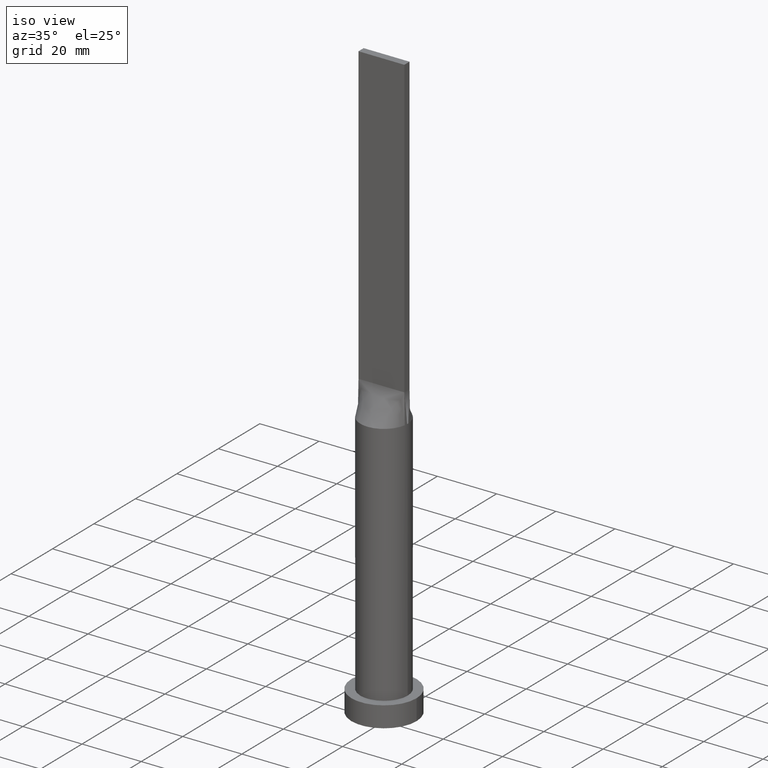
[diagram: clean part render]
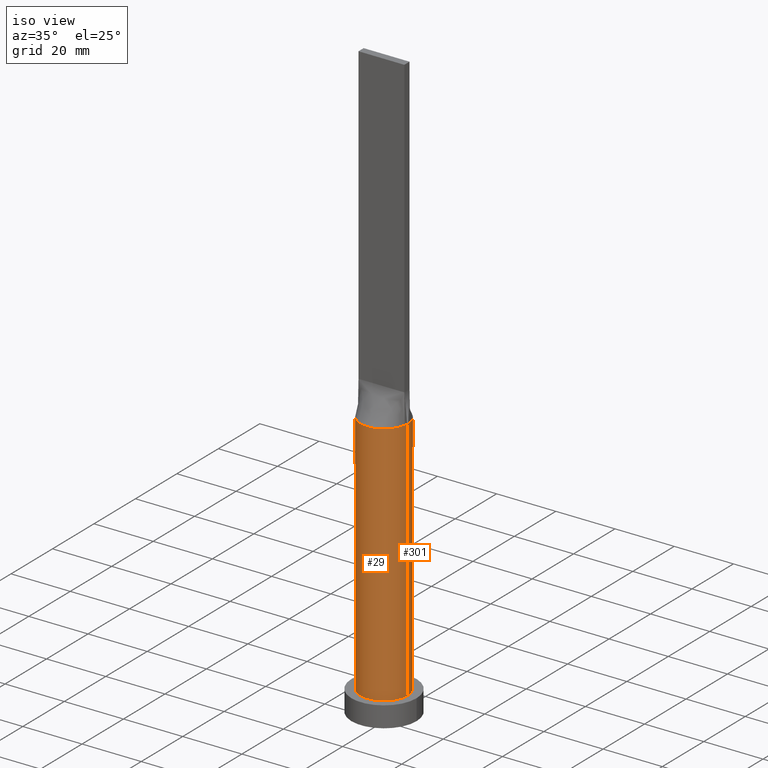
[diagram: same view with one multi-face feature highlighted, each face labeled with its STEP entity id]
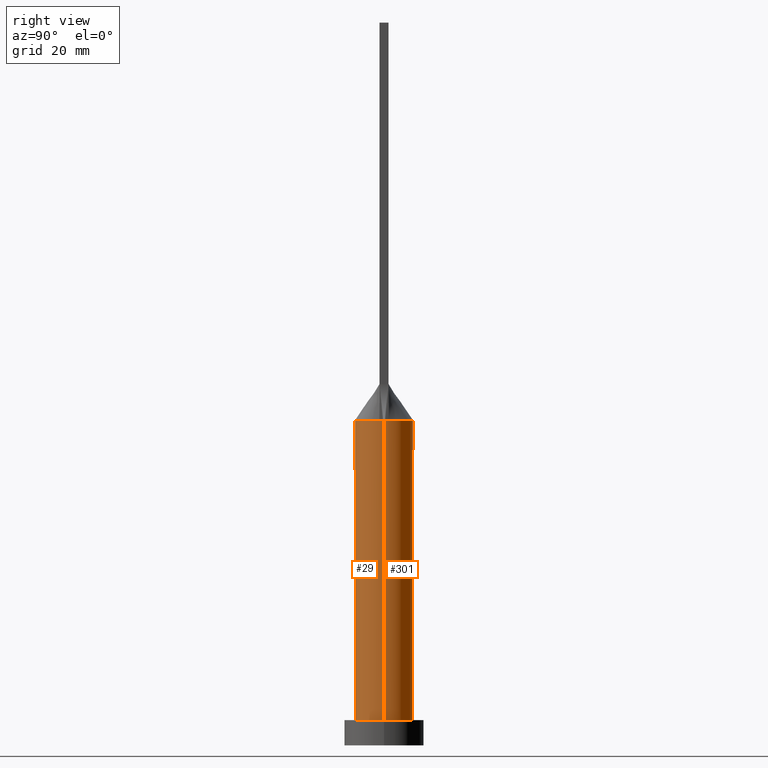
[diagram: same view with one multi-face feature highlighted, each face labeled with its STEP entity id]
A machine part, iso view. The highlighted faces form ONE feature: a constant-radius fillet chain: 2 tangent blend faces with common blend radius 8 mm. The faces share edges in the B-rep.
A second angle (right view) of the same feature is appended — it is thin or edge-on in the first view.
Their STEP definitions:
[1] entity #29 (Cylinder):
#13 = VERTEX_POINT ( 'NONE', #71 ) ;
#19 = EDGE_LOOP ( 'NONE', ( #499, #325, #556, #604, #462, #554 ) ) ;
#29 = ADVANCED_FACE ( 'NONE', ( #595 ), #283, .T. ) ;
#48 = DIRECTION ( 'NONE',  ( 1.000000000000000000, 1.776356839400250465E-15, 0.000000000000000000 ) ) ;
#50 = CARTESIAN_POINT ( 'NONE',  ( -8.000000000000000000, 0.000000000000000000, 7.000000000000000000 ) ) ;
#71 = CARTESIAN_POINT ( 'NONE',  ( -7.999674421998661522, -1.996358676257538358E-15, 90.00000000000001421 ) ) ;
#83 = AXIS2_PLACEMENT_3D ( 'NONE', #503, #102, #48 ) ;
#99 = CIRCLE ( 'NONE', #469, 8.000000000000000000 ) ;
#102 = DIRECTION ( 'NONE',  ( 0.000000000000000000, 0.000000000000000000, 1.000000000000000000 ) ) ;
#109 = CARTESIAN_POINT ( 'NONE',  ( 0.000000000000000000, 0.000000000000000000, 90.00000000000001421 ) ) ;
#121 = DIRECTION ( 'NONE',  ( -0.000000000000000000, -0.000000000000000000, -1.000000000000000000 ) ) ;
#126 = EDGE_CURVE ( 'NONE', #239, #549, #494, .T. ) ;
#135 = DIRECTION ( 'NONE',  ( -0.000000000000000000, -0.000000000000000000, -1.000000000000000000 ) ) ;
#192 = AXIS2_PLACEMENT_3D ( 'NONE', #570, #484, #619 ) ;
#195 = DIRECTION ( 'NONE',  ( 1.000000000000000000, 0.000000000000000000, 0.000000000000000000 ) ) ;
#199 = DIRECTION ( 'NONE',  ( 0.000000000000000000, 0.000000000000000000, 1.000000000000000000 ) ) ;
#210 = CARTESIAN_POINT ( 'NONE',  ( -7.897940634034629426, -1.273861398824698732, 90.00000000000001421 ) ) ;
#239 = VERTEX_POINT ( 'NONE', #50 ) ;
#283 = CYLINDRICAL_SURFACE ( 'NONE', #350, 8.000000000000000000 ) ;
#285 = LINE ( 'NONE', #527, #456 ) ;
#308 = CIRCLE ( 'NONE', #404, 8.000000000000000000 ) ;
#316 = DIRECTION ( 'NONE',  ( -0.000000000000000000, -0.000000000000000000, -1.000000000000000000 ) ) ;
#317 = EDGE_CURVE ( 'NONE', #567, #549, #285, .T. ) ;
#325 = ORIENTED_EDGE ( 'NONE', *, *, #571, .F. ) ;
#339 = EDGE_CURVE ( 'NONE', #13, #239, #475, .T. ) ;
#350 = AXIS2_PLACEMENT_3D ( 'NONE', #109, #316, #472 ) ;
#364 = VERTEX_POINT ( 'NONE', #393 ) ;
#365 = VECTOR ( 'NONE', #121, 1000.000000000000000 ) ;
#388 = CIRCLE ( 'NONE', #83, 8.000000000000000000 ) ;
#391 = EDGE_CURVE ( 'NONE', #458, #364, #308, .T. ) ;
#393 = CARTESIAN_POINT ( 'NONE',  ( 7.897952327758385849, -1.273863293446191536, 90.00000000000001421 ) ) ;
#404 = AXIS2_PLACEMENT_3D ( 'NONE', #483, #199, #536 ) ;
#408 = EDGE_CURVE ( 'NONE', #13, #458, #99, .T. ) ;
#416 = CARTESIAN_POINT ( 'NONE',  ( -8.000000000000000000, 0.000000000000000000, 90.00000000000001421 ) ) ;
#435 = CARTESIAN_POINT ( 'NONE',  ( 0.000000000000000000, 0.000000000000000000, 90.00000000000001421 ) ) ;
#456 = VECTOR ( 'NONE', #135, 1000.000000000000000 ) ;
#458 = VERTEX_POINT ( 'NONE', #210 ) ;
#461 = CARTESIAN_POINT ( 'NONE',  ( 8.000000000000000000, 9.797174393178825657E-16, 7.000000000000000000 ) ) ;
#462 = ORIENTED_EDGE ( 'NONE', *, *, #339, .T. ) ;
#469 = AXIS2_PLACEMENT_3D ( 'NONE', #435, #572, #195 ) ;
#472 = DIRECTION ( 'NONE',  ( -1.000000000000000000, 0.000000000000000000, 0.000000000000000000 ) ) ;
#475 = LINE ( 'NONE', #416, #365 ) ;
#483 = CARTESIAN_POINT ( 'NONE',  ( 0.000000000000000000, 0.000000000000000000, 90.00000000000001421 ) ) ;
#484 = DIRECTION ( 'NONE',  ( 0.000000000000000000, 0.000000000000000000, 1.000000000000000000 ) ) ;
#494 = CIRCLE ( 'NONE', #192, 8.000000000000000000 ) ;
#499 = ORIENTED_EDGE ( 'NONE', *, *, #317, .F. ) ;
#502 = CARTESIAN_POINT ( 'NONE',  ( 7.999674421998661522, 1.953788361903730848E-15, 90.00000000000001421 ) ) ;
#503 = CARTESIAN_POINT ( 'NONE',  ( 0.000000000000000000, 0.000000000000000000, 90.00000000000001421 ) ) ;
#527 = CARTESIAN_POINT ( 'NONE',  ( 8.000000000000000000, 9.797174393178825657E-16, 90.00000000000001421 ) ) ;
#536 = DIRECTION ( 'NONE',  ( 1.000000000000000000, 0.000000000000000000, 0.000000000000000000 ) ) ;
#549 = VERTEX_POINT ( 'NONE', #461 ) ;
#554 = ORIENTED_EDGE ( 'NONE', *, *, #126, .T. ) ;
#556 = ORIENTED_EDGE ( 'NONE', *, *, #391, .F. ) ;
#567 = VERTEX_POINT ( 'NONE', #502 ) ;
#570 = CARTESIAN_POINT ( 'NONE',  ( 0.000000000000000000, 0.000000000000000000, 7.000000000000000000 ) ) ;
#571 = EDGE_CURVE ( 'NONE', #364, #567, #388, .T. ) ;
#572 = DIRECTION ( 'NONE',  ( 0.000000000000000000, 0.000000000000000000, 1.000000000000000000 ) ) ;
#595 = FACE_OUTER_BOUND ( 'NONE', #19, .T. ) ;
#604 = ORIENTED_EDGE ( 'NONE', *, *, #408, .F. ) ;
#619 = DIRECTION ( 'NONE',  ( 1.000000000000000000, 0.000000000000000000, 0.000000000000000000 ) ) ;
[2] entity #301 (Cylinder):
#9 = ORIENTED_EDGE ( 'NONE', *, *, #339, .F. ) ;
#13 = VERTEX_POINT ( 'NONE', #71 ) ;
#15 = DIRECTION ( 'NONE',  ( -0.000000000000000000, -0.000000000000000000, -1.000000000000000000 ) ) ;
#40 = CARTESIAN_POINT ( 'NONE',  ( -2.762781956618985291, 7.527418670504290255, 90.00000000000002842 ) ) ;
#50 = CARTESIAN_POINT ( 'NONE',  ( -8.000000000000000000, 0.000000000000000000, 7.000000000000000000 ) ) ;
#54 = DIRECTION ( 'NONE',  ( 0.000000000000000000, 0.000000000000000000, 1.000000000000000000 ) ) ;
#55 = DIRECTION ( 'NONE',  ( 0.000000000000000000, 0.000000000000000000, 1.000000000000000000 ) ) ;
#59 = CARTESIAN_POINT ( 'NONE',  ( 0.000000000000000000, 0.000000000000000000, 90.00000000000001421 ) ) ;
#65 = AXIS2_PLACEMENT_3D ( 'NONE', #104, #54, #588 ) ;
#71 = CARTESIAN_POINT ( 'NONE',  ( -7.999674421998661522, -1.996358676257538358E-15, 90.00000000000001421 ) ) ;
#75 = CARTESIAN_POINT ( 'NONE',  ( 7.897939137640443974, 1.273861156091724789, 90.00000000000001421 ) ) ;
#80 = FACE_OUTER_BOUND ( 'NONE', #453, .T. ) ;
#81 = CARTESIAN_POINT ( 'NONE',  ( 7.793128424795161990, 1.923622864214272088, 89.99999999999998579 ) ) ;
#87 = B_SPLINE_CURVE_WITH_KNOTS ( 'NONE', 3,
 ( #382, #81, #320, #517, #278, #225, #541, #392, #141, #253, #538, #487, #623, #573, #143, #93, #147, #344, #40, #96, #249, #443, #387, #447, #631, #495, #535, #340, #196, #395 ),
 .UNSPECIFIED., .F., .F.,
 ( 4, 2, 2, 2, 2, 2, 2, 2, 2, 2, 2, 2, 2, 2, 4 ),
 ( 0.000000000000000000, 0.1250000000000000000, 0.1875000000000000000, 0.2500000000000000000, 0.3125000000000000000, 0.3750000000000000000, 0.4375000000000000000, 0.5000000000000000000, 0.5625000000000000000, 0.6250000000000000000, 0.6875000000000000000, 0.7500000000000000000, 0.8125000000000000000, 0.8750000000000000000, 1.000000000000000000 ),
 .UNSPECIFIED. ) ;
#90 = DIRECTION ( 'NONE',  ( 1.000000000000000000, 0.000000000000000000, 0.000000000000000000 ) ) ;
#93 = CARTESIAN_POINT ( 'NONE',  ( -0.5677556330368852544, 7.999999999999998224, 90.00000000000002842 ) ) ;
#96 = CARTESIAN_POINT ( 'NONE',  ( -3.754841939107308235, 7.084924699190308317, 90.00000000000004263 ) ) ;
#97 = CARTESIAN_POINT ( 'NONE',  ( -7.897950825069725234, 1.273863048877633020, 90.00000000000001421 ) ) ;
#98 = EDGE_CURVE ( 'NONE', #315, #227, #87, .T. ) ;
#104 = CARTESIAN_POINT ( 'NONE',  ( 0.000000000000000000, 0.000000000000000000, 7.000000000000000000 ) ) ;
#108 = EDGE_CURVE ( 'NONE', #567, #315, #593, .T. ) ;
#121 = DIRECTION ( 'NONE',  ( -0.000000000000000000, -0.000000000000000000, -1.000000000000000000 ) ) ;
#135 = DIRECTION ( 'NONE',  ( -0.000000000000000000, -0.000000000000000000, -1.000000000000000000 ) ) ;
#136 = EDGE_CURVE ( 'NONE', #549, #239, #334, .T. ) ;
#141 = CARTESIAN_POINT ( 'NONE',  ( 5.056714967162550423, 6.220536417275850383, 90.00000000000001421 ) ) ;
#143 = CARTESIAN_POINT ( 'NONE',  ( 0.5677556330368851434, 7.999999999999998224, 90.00000000000001421 ) ) ;
#147 = CARTESIAN_POINT ( 'NONE',  ( -1.135368687448994329, 7.938897956688654389, 90.00000000000001421 ) ) ;
#196 = CARTESIAN_POINT ( 'NONE',  ( -7.793128424795161102, 1.923622864214273198, 90.00000000000001421 ) ) ;
#215 = ORIENTED_EDGE ( 'NONE', *, *, #108, .F. ) ;
#225 = CARTESIAN_POINT ( 'NONE',  ( 6.389139692789920666, 4.834731051311459638, 90.00000000000004263 ) ) ;
#227 = VERTEX_POINT ( 'NONE', #97 ) ;
#239 = VERTEX_POINT ( 'NONE', #50 ) ;
#249 = CARTESIAN_POINT ( 'NONE',  ( -4.217034177653714799, 6.817775467282660706, 90.00000000000002842 ) ) ;
#253 = CARTESIAN_POINT ( 'NONE',  ( 4.217034177653714799, 6.817775467282659818, 89.99999999999998579 ) ) ;
#256 = CARTESIAN_POINT ( 'NONE',  ( 0.000000000000000000, 0.000000000000000000, 90.00000000000001421 ) ) ;
#278 = CARTESIAN_POINT ( 'NONE',  ( 6.883287261198673512, 4.100742229440780484, 90.00000000000004263 ) ) ;
#285 = LINE ( 'NONE', #527, #456 ) ;
#298 = CIRCLE ( 'NONE', #509, 8.000000000000000000 ) ;
#301 = ADVANCED_FACE ( 'NONE', ( #80 ), #568, .T. ) ;
#315 = VERTEX_POINT ( 'NONE', #75 ) ;
#317 = EDGE_CURVE ( 'NONE', #567, #549, #285, .T. ) ;
#320 = CARTESIAN_POINT ( 'NONE',  ( 7.597511974649646227, 2.632154125590748350, 89.99999999999998579 ) ) ;
#332 = AXIS2_PLACEMENT_3D ( 'NONE', #256, #437, #90 ) ;
#334 = CIRCLE ( 'NONE', #65, 8.000000000000000000 ) ;
#339 = EDGE_CURVE ( 'NONE', #13, #239, #475, .T. ) ;
#340 = CARTESIAN_POINT ( 'NONE',  ( -7.597511974649647115, 2.632154125590751903, 90.00000000000001421 ) ) ;
#344 = CARTESIAN_POINT ( 'NONE',  ( -2.232993174580875539, 7.702525839322460044, 90.00000000000001421 ) ) ;
#365 = VECTOR ( 'NONE', #121, 1000.000000000000000 ) ;
#370 = ORIENTED_EDGE ( 'NONE', *, *, #317, .T. ) ;
#376 = DIRECTION ( 'NONE',  ( -1.000000000000000000, 0.000000000000000000, 0.000000000000000000 ) ) ;
#380 = ORIENTED_EDGE ( 'NONE', *, *, #477, .F. ) ;
#382 = CARTESIAN_POINT ( 'NONE',  ( 7.897939137640443974, 1.273861156091724789, 90.00000000000001421 ) ) ;
#387 = CARTESIAN_POINT ( 'NONE',  ( -5.434261125067506804, 5.890653037160105576, 90.00000000000001421 ) ) ;
#392 = CARTESIAN_POINT ( 'NONE',  ( 5.434261125067508580, 5.890653037160103800, 90.00000000000001421 ) ) ;
#395 = CARTESIAN_POINT ( 'NONE',  ( -7.897950825069725234, 1.273863048877633020, 90.00000000000001421 ) ) ;
#416 = CARTESIAN_POINT ( 'NONE',  ( -8.000000000000000000, 0.000000000000000000, 90.00000000000001421 ) ) ;
#437 = DIRECTION ( 'NONE',  ( 0.000000000000000000, 0.000000000000000000, 1.000000000000000000 ) ) ;
#439 = AXIS2_PLACEMENT_3D ( 'NONE', #557, #15, #376 ) ;
#443 = CARTESIAN_POINT ( 'NONE',  ( -5.056714967162549534, 6.220536417275851271, 90.00000000000002842 ) ) ;
#447 = CARTESIAN_POINT ( 'NONE',  ( -6.100409024666552327, 5.197691498289451317, 90.00000000000001421 ) ) ;
#453 = EDGE_LOOP ( 'NONE', ( #215, #370, #531, #9, #380, #526 ) ) ;
#456 = VECTOR ( 'NONE', #135, 1000.000000000000000 ) ;
#461 = CARTESIAN_POINT ( 'NONE',  ( 8.000000000000000000, 9.797174393178825657E-16, 7.000000000000000000 ) ) ;
#475 = LINE ( 'NONE', #416, #365 ) ;
#477 = EDGE_CURVE ( 'NONE', #227, #13, #298, .T. ) ;
#487 = CARTESIAN_POINT ( 'NONE',  ( 2.762781956618984847, 7.527418670504289366, 90.00000000000004263 ) ) ;
#495 = CARTESIAN_POINT ( 'NONE',  ( -6.883287261198669960, 4.100742229440782260, 90.00000000000002842 ) ) ;
#502 = CARTESIAN_POINT ( 'NONE',  ( 7.999674421998661522, 1.953788361903730848E-15, 90.00000000000001421 ) ) ;
#509 = AXIS2_PLACEMENT_3D ( 'NONE', #59, #55, #591 ) ;
#517 = CARTESIAN_POINT ( 'NONE',  ( 7.088837466865212988, 3.729743859143727303, 89.99999999999998579 ) ) ;
#526 = ORIENTED_EDGE ( 'NONE', *, *, #98, .F. ) ;
#527 = CARTESIAN_POINT ( 'NONE',  ( 8.000000000000000000, 9.797174393178825657E-16, 90.00000000000001421 ) ) ;
#531 = ORIENTED_EDGE ( 'NONE', *, *, #136, .T. ) ;
#535 = CARTESIAN_POINT ( 'NONE',  ( -7.088837466865208548, 3.729743859143727747, 89.99999999999998579 ) ) ;
#538 = CARTESIAN_POINT ( 'NONE',  ( 3.754841939107309567, 7.084924699190306541, 90.00000000000002842 ) ) ;
#541 = CARTESIAN_POINT ( 'NONE',  ( 6.100409024666552327, 5.197691498289451317, 90.00000000000001421 ) ) ;
#549 = VERTEX_POINT ( 'NONE', #461 ) ;
#557 = CARTESIAN_POINT ( 'NONE',  ( 0.000000000000000000, 0.000000000000000000, 90.00000000000001421 ) ) ;
#567 = VERTEX_POINT ( 'NONE', #502 ) ;
#568 = CYLINDRICAL_SURFACE ( 'NONE', #439, 8.000000000000000000 ) ;
#573 = CARTESIAN_POINT ( 'NONE',  ( 1.135368687448996328, 7.938897956688654389, 90.00000000000001421 ) ) ;
#588 = DIRECTION ( 'NONE',  ( 1.000000000000000000, 0.000000000000000000, 0.000000000000000000 ) ) ;
#591 = DIRECTION ( 'NONE',  ( 1.000000000000000000, 0.000000000000000000, 0.000000000000000000 ) ) ;
#593 = CIRCLE ( 'NONE', #332, 8.000000000000000000 ) ;
#623 = CARTESIAN_POINT ( 'NONE',  ( 2.232993174580878204, 7.702525839322459156, 90.00000000000002842 ) ) ;
#631 = CARTESIAN_POINT ( 'NONE',  ( -6.389139692789916225, 4.834731051311460526, 90.00000000000002842 ) ) ;